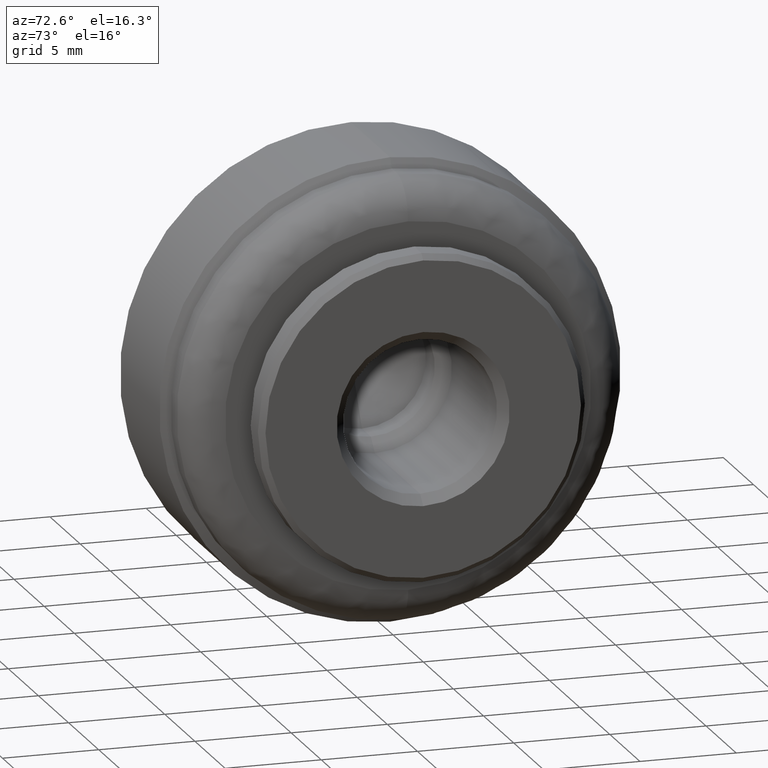
[diagram: clean part render]
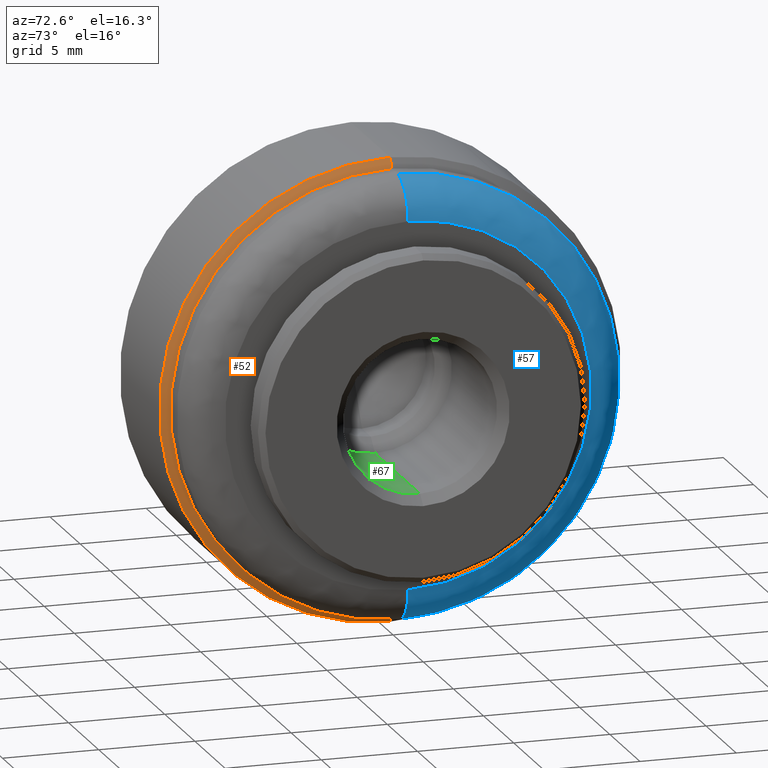
[diagram: same view with three faces highlighted in distinct colors, each labeled with its STEP entity id]
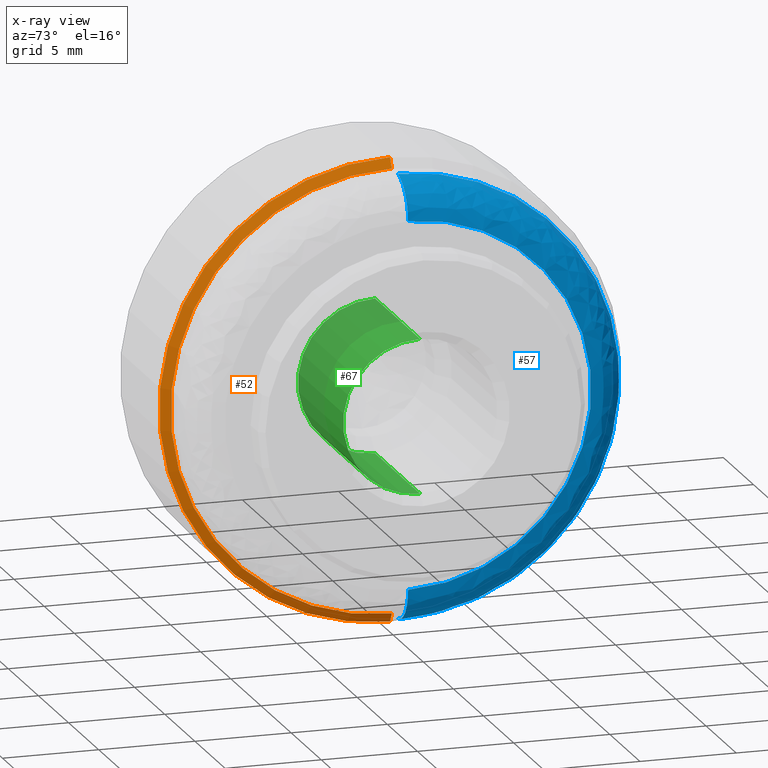
[diagram: x-ray of the same camera — body ghosted, the three highlighted faces saturated]
A machine part, auxiliary view with three faces highlighted in distinct colors.
The next image is the same camera in x-ray (body ghosted, the three faces saturated) — at least one of them is partly hidden behind the body in this view.
Their STEP definitions:

[orange] entity #52 — the highlighted face is a freeform B-spline surface patch.
#52=ADVANCED_FACE('',(#196),#195,.T.);
#195=( BOUNDED_SURFACE() B_SPLINE_SURFACE( 2,1,((#524,#525),(#526,#527),(#528,#529),(#530,#531),(#532,#533)), .UNSPECIFIED.,.F.,.F.,.F.) B_SPLINE_SURFACE_WITH_KNOTS((3,2,3),(2,2),(0.00000000000E+00,5.00000000000E-01,1.00000000000E+00),(0.00000000000E+00,1.00000000000E+00), .UNSPECIFIED. ) GEOMETRIC_REPRESENTATION_ITEM() RATIONAL_B_SPLINE_SURFACE(((1.00000000000E+00,1.00000000000E+00),(7.07106781187E-01,7.07106781187E-01),(1.00000000000E+00,1.00000000000E+00),(7.07106781187E-01,7.07106781187E-01),(1.00000000000E+00,1.00000000000E+00))) REPRESENTATION_ITEM('') SURFACE() );
#196=FACE_OUTER_BOUND('',#534,.T.);
#524=CARTESIAN_POINT('',(1.70000000000E+00,0.00000000000E+00,0.00000000000E+00));
#525=CARTESIAN_POINT('',(-8.48233764909E+00,-4.15658906993E-15,-1.69705627485E+01));
#526=CARTESIAN_POINT('',(1.70000000000E+00,0.00000000000E+00,0.00000000000E+00));
#527=CARTESIAN_POINT('',(-8.48233764909E+00,-1.69705627485E+01,-1.69705627485E+01));
#528=CARTESIAN_POINT('',(1.70000000000E+00,0.00000000000E+00,0.00000000000E+00));
#529=CARTESIAN_POINT('',(-8.48233764909E+00,-1.69705627485E+01,3.11744180245E-15));
#530=CARTESIAN_POINT('',(1.70000000000E+00,0.00000000000E+00,0.00000000000E+00));
#531=CARTESIAN_POINT('',(-8.48233764909E+00,-1.69705627485E+01,1.69705627485E+01));
#532=CARTESIAN_POINT('',(1.70000000000E+00,0.00000000000E+00,0.00000000000E+00));
#533=CARTESIAN_POINT('',(-8.48233764909E+00,2.07829453497E-15,1.69705627485E+01));
#534=EDGE_LOOP('',(#758,#759,#760,#761));
#758=ORIENTED_EDGE('',*,*,#865,.F.);
#759=ORIENTED_EDGE('',*,*,#868,.F.);
#760=ORIENTED_EDGE('',*,*,#869,.T.);
#761=ORIENTED_EDGE('',*,*,#870,.T.);
#865=EDGE_CURVE('',#1066,#1065,#1085,.T.);
#868=EDGE_CURVE('',#1103,#1066,#1104,.T.);
#869=EDGE_CURVE('',#1103,#1110,#1111,.T.);
#870=EDGE_CURVE('',#1110,#1065,#1117,.T.);
#1065=VERTEX_POINT('',#1416);
#1066=VERTEX_POINT('',#1417);
#1085=CIRCLE('',#1429,1.20000000000E+01);
#1103=VERTEX_POINT('',#1437);
#1104=(BOUNDED_CURVE() B_SPLINE_CURVE(1,(#1438,#1439),.UNSPECIFIED.,.F.,.F.) B_SPLINE_CURVE_WITH_KNOTS((2,2),(6.77643997967E-01,7.07106780135E-01),.UNSPECIFIED.) CURVE() GEOMETRIC_REPRESENTATION_ITEM() RATIONAL_B_SPLINE_CURVE((1.00000000000E+00,1.00000000000E+00)) REPRESENTATION_ITEM('') );
#1110=VERTEX_POINT('',#1440);
#1111=CIRCLE('',#1444,1.15000000000E+01);
#1117=(BOUNDED_CURVE() B_SPLINE_CURVE(1,(#1445,#1446),.UNSPECIFIED.,.F.,.F.) B_SPLINE_CURVE_WITH_KNOTS((2,2),(6.77643991359E-01,7.07106773592E-01),.UNSPECIFIED.) CURVE() GEOMETRIC_REPRESENTATION_ITEM() RATIONAL_B_SPLINE_CURVE((7.50000000000E-01,7.50000000000E-01)) REPRESENTATION_ITEM('') );
#1416=CARTESIAN_POINT('',(-5.50000000000E+00,0.00000000000E+00,1.20000000000E+01));
#1417=CARTESIAN_POINT('',(-5.50000000000E+00,0.00000000000E+00,-1.20000000000E+01));
#1426=CARTESIAN_POINT('',(-5.50000000000E+00,0.00000000000E+00,0.00000000000E+00));
#1427=DIRECTION('',(-1.00000000000E+00,0.00000000000E+00,0.00000000000E+00));
#1428=DIRECTION('',(0.00000000000E+00,-1.22460635382E-16,1.00000000000E+00));
#1429=AXIS2_PLACEMENT_3D('',#1426,#1427,#1428);
#1437=CARTESIAN_POINT('',(-5.20000000000E+00,5.92118946467E-16,-1.15000000000E+01));
#1438=CARTESIAN_POINT('',(-5.19999999317E+00,-2.81668763525E-15,-1.14999999886E+01));
#1439=CARTESIAN_POINT('',(-5.49999998930E+00,-2.93915231358E-15,-1.19999999822E+01));
#1440=CARTESIAN_POINT('',(-5.20000000000E+00,0.00000000000E+00,1.15000000000E+01));
#1441=CARTESIAN_POINT('',(-5.20000000000E+00,0.00000000000E+00,0.00000000000E+00));
#1442=DIRECTION('',(-1.00000000000E+00,0.00000000000E+00,0.00000000000E+00));
#1443=DIRECTION('',(0.00000000000E+00,-1.22460635382E-16,1.00000000000E+00));
#1444=AXIS2_PLACEMENT_3D('',#1441,#1442,#1443);
#1445=CARTESIAN_POINT('',(-5.19999992589E+00,3.20996676994E-15,1.14999998765E+01));
#1446=CARTESIAN_POINT('',(-5.49999992267E+00,3.34953054255E-15,1.19999998711E+01));

[blue] entity #57 — the highlighted face is a freeform B-spline surface patch.
#57=ADVANCED_FACE('',(#246),#245,.T.);
#245=( BOUNDED_SURFACE() B_SPLINE_SURFACE( 2,2,((#582,#583,#584,#585,#586),(#587,#588,#589,#590,#591),(#592,#593,#594,#595,#596),(#597,#598,#599,#600,#601),(#602,#603,#604,#605,#606)), .UNSPECIFIED.,.F.,.F.,.F.) B_SPLINE_SURFACE_WITH_KNOTS((3,2,3),(3,2,3),(0.00000000000E+00,5.00000000000E-01,1.00000000000E+00),(0.00000000000E+00,5.00000000000E-01,1.00000000000E+00), .UNSPECIFIED. ) GEOMETRIC_REPRESENTATION_ITEM() RATIONAL_B_SPLINE_SURFACE(((1.00000000000E+00,7.58365700369E-01,1.00000000000E+00,7.58365700369E-01,1.00000000000E+00),(7.07106781187E-01,5.36245529350E-01,7.07106781187E-01,5.36245529350E-01,7.07106781187E-01),(1.00000000000E+00,7.58365700369E-01,1.00000000000E+00,7.58365700369E-01,1.00000000000E+00),(7.07106781187E-01,5.36245529350E-01,7.07106781187E-01,5.36245529350E-01,7.07106781187E-01),(1.00000000000E+00,7.58365700369E-01,1.00000000000E+00,7.58365700369E-01,1.00000000000E+00))) REPRESENTATION_ITEM('') SURFACE() );
#246=FACE_OUTER_BOUND('',#607,.T.);
#582=CARTESIAN_POINT('',(-4.19952585802E+00,-3.05176155074E-20,7.54540000000E+00));
#583=CARTESIAN_POINT('',(-2.50000000000E+00,-3.15621688985E-20,7.80366307286E+00));
#584=CARTESIAN_POINT('',(-2.50000000000E+00,-3.85148696148E-20,9.52270000000E+00));
#585=CARTESIAN_POINT('',(-2.50000000000E+00,-4.54675703312E-20,1.12417369271E+01));
#586=CARTESIAN_POINT('',(-4.19952585802E+00,-4.65121237223E-20,1.15000000000E+01));
#587=CARTESIAN_POINT('',(-4.19952585802E+00,7.54540000000E+00,7.54540000000E+00));
#588=CARTESIAN_POINT('',(-2.50000000000E+00,7.80366307286E+00,7.80366307286E+00));
#589=CARTESIAN_POINT('',(-2.50000000000E+00,9.52270000000E+00,9.52270000000E+00));
#590=CARTESIAN_POINT('',(-2.50000000000E+00,1.12417369271E+01,1.12417369271E+01));
#591=CARTESIAN_POINT('',(-4.19952585802E+00,1.15000000000E+01,1.15000000000E+01));
#592=CARTESIAN_POINT('',(-4.19952585802E+00,7.54540000000E+00,4.62053015530E-16));
#593=CARTESIAN_POINT('',(-2.50000000000E+00,7.80366307286E+00,4.77868112359E-16));
#594=CARTESIAN_POINT('',(-2.50000000000E+00,9.52270000000E+00,5.83135718582E-16));
#595=CARTESIAN_POINT('',(-2.50000000000E+00,1.12417369271E+01,6.88403324804E-16));
#596=CARTESIAN_POINT('',(-4.19952585802E+00,1.15000000000E+01,7.04218421633E-16));
#597=CARTESIAN_POINT('',(-4.19952585802E+00,7.54540000000E+00,-7.54540000000E+00));
#598=CARTESIAN_POINT('',(-2.50000000000E+00,7.80366307286E+00,-7.80366307286E+00));
#599=CARTESIAN_POINT('',(-2.50000000000E+00,9.52270000000E+00,-9.52270000000E+00));
#600=CARTESIAN_POINT('',(-2.50000000000E+00,1.12417369271E+01,-1.12417369271E+01));
#601=CARTESIAN_POINT('',(-4.19952585802E+00,1.15000000000E+01,-1.15000000000E+01));
#602=CARTESIAN_POINT('',(-4.19952585802E+00,9.24075513444E-16,-7.54540000000E+00));
#603=CARTESIAN_POINT('',(-2.50000000000E+00,9.55704662549E-16,-7.80366307286E+00));
#604=CARTESIAN_POINT('',(-2.50000000000E+00,1.16623292229E-15,-9.52270000000E+00));
#605=CARTESIAN_POINT('',(-2.50000000000E+00,1.37676118204E-15,-1.12417369271E+01));
#606=CARTESIAN_POINT('',(-4.19952585802E+00,1.40839033114E-15,-1.15000000000E+01));
#607=EDGE_LOOP('',(#778,#779,#780,#781));
#778=ORIENTED_EDGE('',*,*,#841,.T.);
#779=ORIENTED_EDGE('',*,*,#876,.T.);
#780=ORIENTED_EDGE('',*,*,#872,.F.);
#781=ORIENTED_EDGE('',*,*,#877,.F.);
#841=EDGE_CURVE('',#915,#914,#922,.T.);
#872=EDGE_CURVE('',#1129,#1130,#1131,.T.);
#876=EDGE_CURVE('',#914,#1130,#1155,.T.);
#877=EDGE_CURVE('',#915,#1129,#1161,.T.);
#914=VERTEX_POINT('',#1317);
#915=VERTEX_POINT('',#1318);
#922=CIRCLE('',#1326,9.52270000000E+00);
#1129=VERTEX_POINT('',#1451);
#1130=VERTEX_POINT('',#1452);
#1131=CIRCLE('',#1456,1.15000000000E+01);
#1155=(BOUNDED_CURVE() B_SPLINE_CURVE(2,(#1465,#1466,#1467),.UNSPECIFIED.,.F.,.F.) B_SPLINE_CURVE_WITH_KNOTS((3,3),(5.00000000000E-01,1.00000000000E+00),.UNSPECIFIED.) CURVE() GEOMETRIC_REPRESENTATION_ITEM() RATIONAL_B_SPLINE_CURVE((1.00000000000E+00,7.58365700369E-01,1.00000000000E+00)) REPRESENTATION_ITEM('') );
#1161=(BOUNDED_CURVE() B_SPLINE_CURVE(3,(#1468,#1469,#1470,#1471,#1472),.UNSPECIFIED.,.F.,.F.) B_SPLINE_CURVE_WITH_KNOTS((4,1,4),(4.99999996324E-01,7.49999997933E-01,1.00000000000E+00),.UNSPECIFIED.) CURVE() GEOMETRIC_REPRESENTATION_ITEM() RATIONAL_B_SPLINE_CURVE((1.00000000000E+00,1.00000000000E+00,1.00000000000E+00,1.00000000000E+00,1.00000000000E+00)) REPRESENTATION_ITEM('') );
#1317=CARTESIAN_POINT('',(-2.50000000000E+00,0.00000000000E+00,-9.52270000000E+00));
#1318=CARTESIAN_POINT('',(-2.50000000000E+00,0.00000000000E+00,9.52270000000E+00));
#1323=CARTESIAN_POINT('',(-2.50000000000E+00,0.00000000000E+00,0.00000000000E+00));
#1324=DIRECTION('',(-1.00000000000E+00,0.00000000000E+00,0.00000000000E+00));
#1325=DIRECTION('',(0.00000000000E+00,-1.22460635382E-16,1.00000000000E+00));
#1326=AXIS2_PLACEMENT_3D('',#1323,#1324,#1325);
#1451=CARTESIAN_POINT('',(-4.19952585802E+00,0.00000000000E+00,1.15000000000E+01));
#1452=CARTESIAN_POINT('',(-4.19952585802E+00,5.92118946467E-16,-1.15000000000E+01));
#1453=CARTESIAN_POINT('',(-4.19952585802E+00,0.00000000000E+00,0.00000000000E+00));
#1454=DIRECTION('',(-1.00000000000E+00,0.00000000000E+00,0.00000000000E+00));
#1455=DIRECTION('',(0.00000000000E+00,-1.22460635382E-16,1.00000000000E+00));
#1456=AXIS2_PLACEMENT_3D('',#1453,#1454,#1455);
#1465=CARTESIAN_POINT('',(-2.50000000000E+00,-1.16615589255E-15,-9.52270000000E+00));
#1466=CARTESIAN_POINT('',(-2.50000000000E+00,-1.37667024690E-15,-1.12417369271E+01));
#1467=CARTESIAN_POINT('',(-4.19952585802E+00,-1.40829730690E-15,-1.15000000000E+01));
#1468=CARTESIAN_POINT('',(-2.50000000000E+00,1.77635683265E-15,9.52269998083E+00));
#1469=CARTESIAN_POINT('',(-2.49705155357E+00,1.82571978497E-15,9.99245126681E+00));
#1470=CARTESIAN_POINT('',(-2.85067976717E+00,1.75731282009E-15,1.09403211779E+01));
#1471=CARTESIAN_POINT('',(-3.73466328298E+00,1.39453284443E-15,1.14323409197E+01));
#1472=CARTESIAN_POINT('',(-4.19952585802E+00,1.18423789293E-15,1.15000000000E+01));

[green] entity #67 — the highlighted cylindrical surface (partial cylindrical patch) has radius 4 mm, axis along (1, -0, -0).
#67=ADVANCED_FACE('',(#346),#345,.F.);
#345=CYLINDRICAL_SURFACE('',#680,4.00000000000E+00);
#346=FACE_OUTER_BOUND('',#681,.T.);
#677=CARTESIAN_POINT('',(0.00000000000E+00,0.00000000000E+00,0.00000000000E+00));
#678=DIRECTION('',(1.00000000000E+00,-0.00000000000E+00,-0.00000000000E+00));
#679=DIRECTION('',(-0.00000000000E+00,-0.00000000000E+00,-1.00000000000E+00));
#680=AXIS2_PLACEMENT_3D('',#677,#678,#679);
#681=EDGE_LOOP('',(#818,#819,#820,#821));
#818=ORIENTED_EDGE('',*,*,#886,.F.);
#819=ORIENTED_EDGE('',*,*,#891,.F.);
#820=ORIENTED_EDGE('',*,*,#893,.T.);
#821=ORIENTED_EDGE('',*,*,#892,.T.);
#886=EDGE_CURVE('',#1217,#1218,#1219,.T.);
#891=EDGE_CURVE('',#1244,#1217,#1251,.T.);
#892=EDGE_CURVE('',#1243,#1218,#1257,.T.);
#893=EDGE_CURVE('',#1244,#1243,#1263,.T.);
#1217=VERTEX_POINT('',#1495);
#1218=VERTEX_POINT('',#1496);
#1219=CIRCLE('',#1500,4.00000000000E+00);
#1243=VERTEX_POINT('',#1509);
#1244=VERTEX_POINT('',#1510);
#1251=(BOUNDED_CURVE() B_SPLINE_CURVE(1,(#1515,#1516),.UNSPECIFIED.,.F.,.F.) B_SPLINE_CURVE_WITH_KNOTS((2,2),(8.33333366442E-02,9.16666667899E-01),.UNSPECIFIED.) CURVE() GEOMETRIC_REPRESENTATION_ITEM() RATIONAL_B_SPLINE_CURVE((1.00000000000E+00,1.00000000000E+00)) REPRESENTATION_ITEM('') );
#1257=(BOUNDED_CURVE() B_SPLINE_CURVE(1,(#1517,#1518),.UNSPECIFIED.,.F.,.F.) B_SPLINE_CURVE_WITH_KNOTS((2,2),(8.33333333333E-02,9.16666666667E-01),.UNSPECIFIED.) CURVE() GEOMETRIC_REPRESENTATION_ITEM() RATIONAL_B_SPLINE_CURVE((7.50000000000E-01,7.50000000000E-01)) REPRESENTATION_ITEM('') );
#1263=CIRCLE('',#1522,4.00000000000E+00);
#1495=CARTESIAN_POINT('',(-5.00000000000E-01,4.44089209850E-16,-4.00000000000E+00));
#1496=CARTESIAN_POINT('',(-5.00000000000E-01,0.00000000000E+00,4.00000000000E+00));
#1497=CARTESIAN_POINT('',(-5.00000000000E-01,0.00000000000E+00,0.00000000000E+00));
#1498=DIRECTION('',(-1.00000000000E+00,0.00000000000E+00,0.00000000000E+00));
#1499=DIRECTION('',(0.00000000000E+00,-1.22460635382E-16,1.00000000000E+00));
#1500=AXIS2_PLACEMENT_3D('',#1497,#1498,#1499);
#1509=CARTESIAN_POINT('',(-8.00000000000E+00,0.00000000000E+00,4.00000000000E+00));
#1510=CARTESIAN_POINT('',(-8.00000000000E+00,4.44089209850E-16,-4.00000000000E+00));
#1515=CARTESIAN_POINT('',(-7.99999997020E+00,0.00000000000E+00,-4.00000000000E+00));
#1516=CARTESIAN_POINT('',(-4.99999988905E-01,0.00000000000E+00,-4.00000000000E+00));
#1517=CARTESIAN_POINT('',(-8.00000000000E+00,-1.48029736617E-16,4.00000000000E+00));
#1518=CARTESIAN_POINT('',(-5.00000000000E-01,-1.48029736617E-16,4.00000000000E+00));
#1519=CARTESIAN_POINT('',(-8.00000000000E+00,0.00000000000E+00,0.00000000000E+00));
#1520=DIRECTION('',(-1.00000000000E+00,0.00000000000E+00,0.00000000000E+00));
#1521=DIRECTION('',(0.00000000000E+00,-1.22460635382E-16,1.00000000000E+00));
#1522=AXIS2_PLACEMENT_3D('',#1519,#1520,#1521);